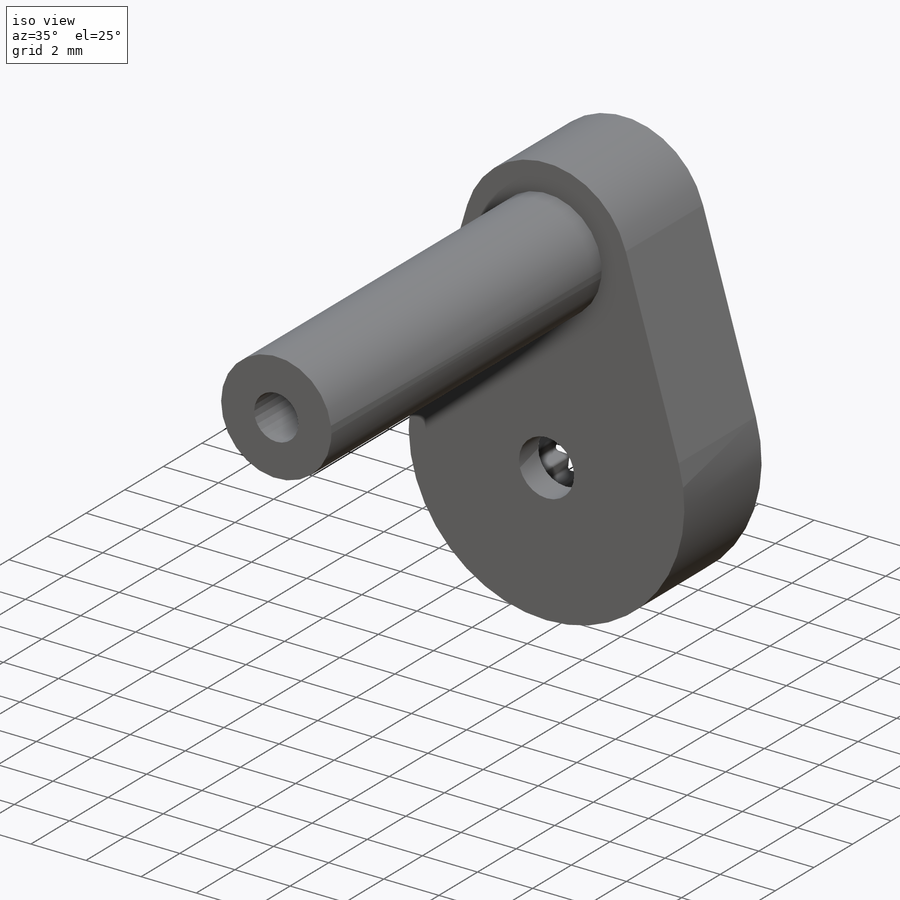
[diagram: iso view]
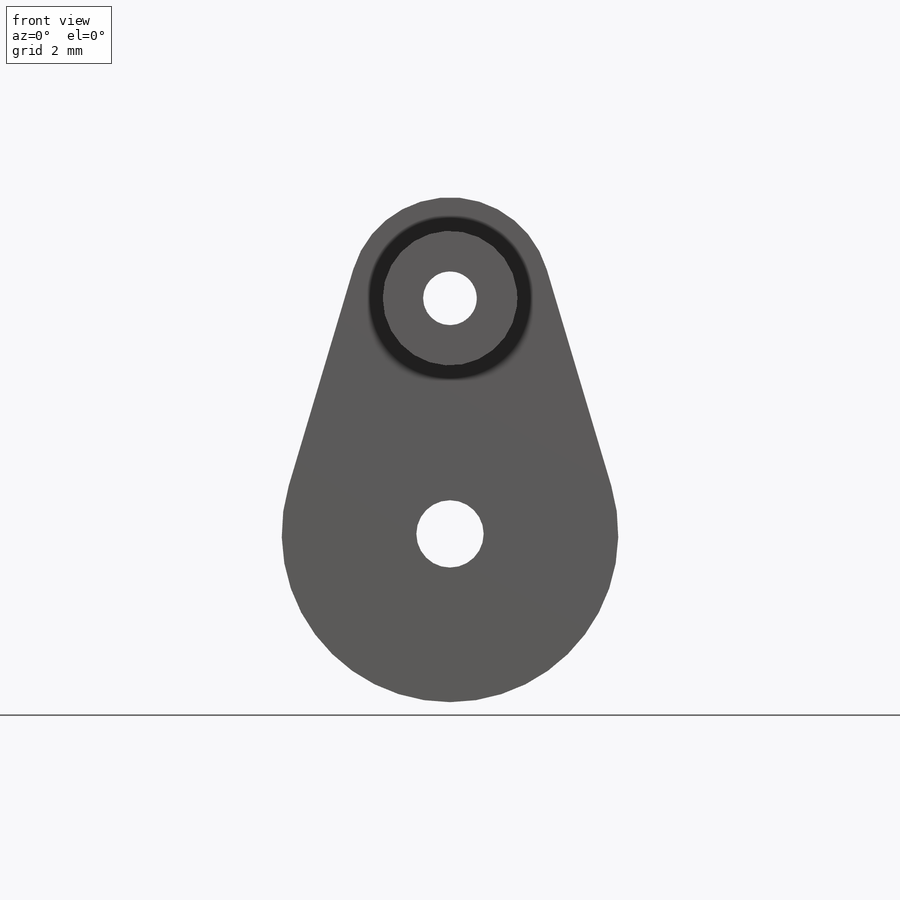
[diagram: front view]
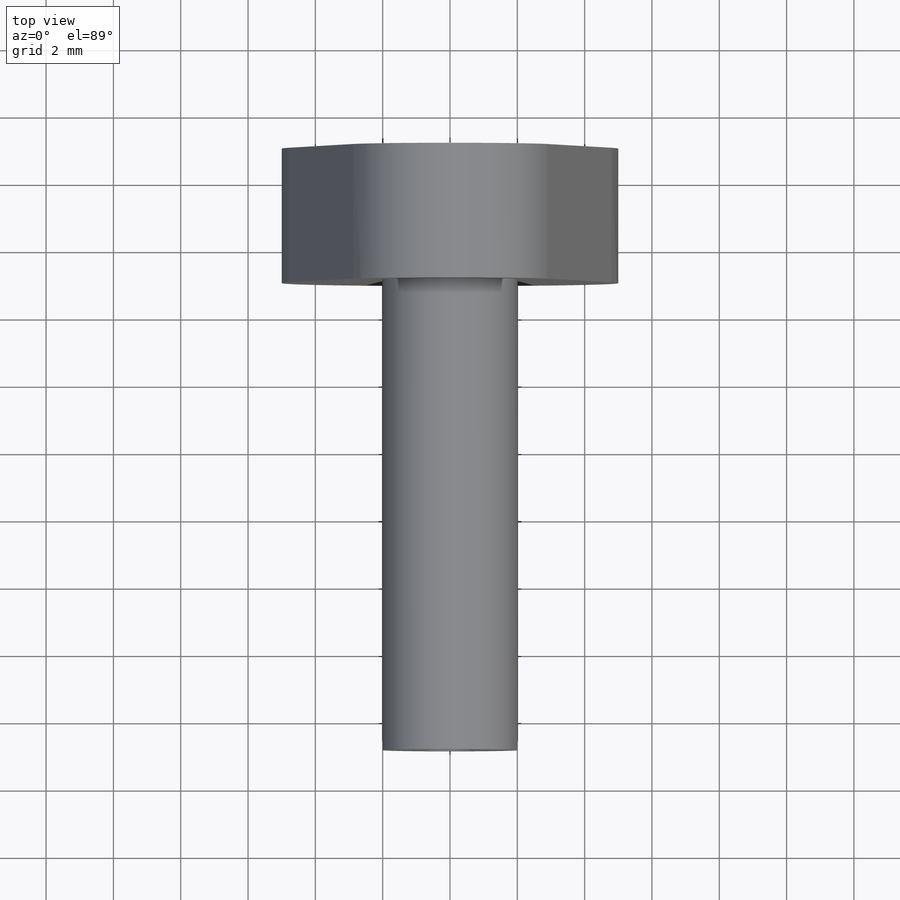
[diagram: top view]
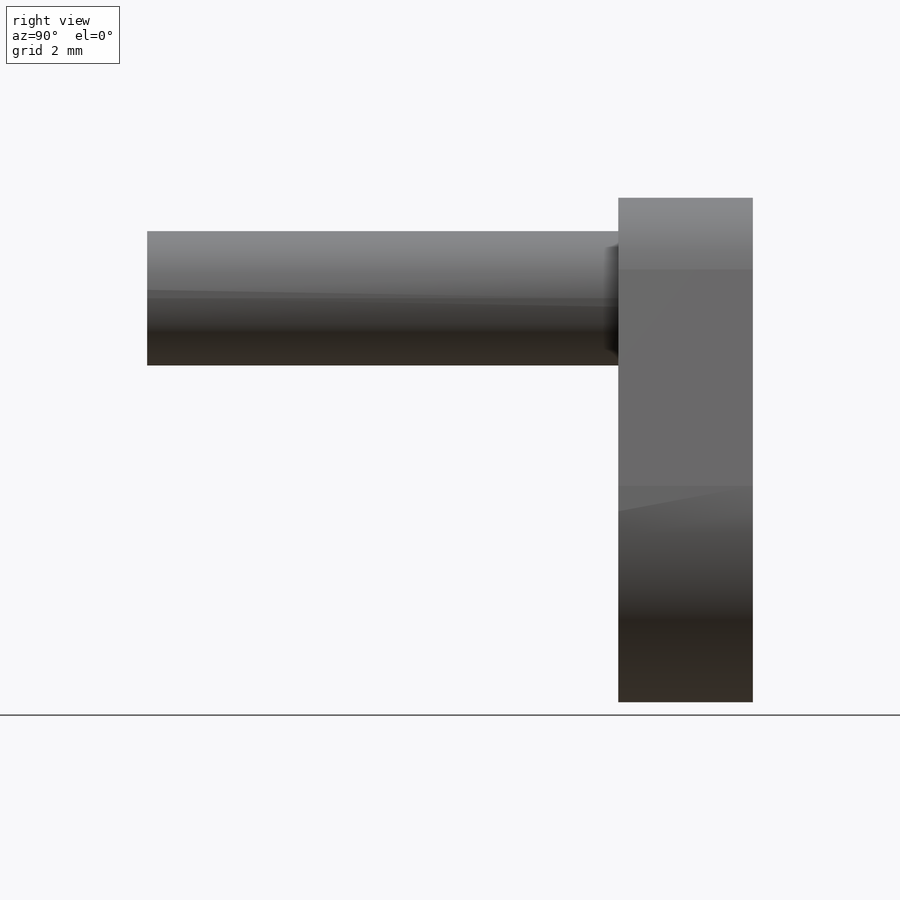
[diagram: right view]
SOLIDWORKS PART (.sldprt)
format: sldprt  version: not decoded by parser v0  size: 299,008 bytes
history: native  units: mm
features: sketch x6, extrude x4, plane x3, material x1, hole x1, pattern_circular x1 (+9 scaffold rows collapsed)
feature tree (25):
  scaffold x9  (default folders/planes/origin — collapsed)
  material  "PVC hart"
  plane  "Ebene vorne"
  plane  "Ebene oben"
  plane  "Ebene rechts"
  sketch  "Skizze1"  dims[c1.D1=5.8mm c1.D2=5.0mm c1.D4=4.0mm c1.D5=2.0mm c1.D6=~2.872077mm c1.D3=7.0mm c2.D6=1.0mm]
  extrude  "Aufsatz-Linear austragen1"  Depth=3mm
  extrude  "Aufsatz-Linear austragen2"  [1 undecoded]
  sketch  "Skizze1<3>"  dims[D1=1.0mm]
  extrude  "Aufsatz-Linear austragen3"  [1 undecoded]
  sketch  "Skizze1<4>"  dims[D1=15.0mm]
  hole  "Formsenkung für M3 Senkschraube mit Innensechskant1"  Diameter=1.6mm Depth=18mm
  sketch  "Skizze3"
  sketch  "Skizze2"  dims[hole-wizard template sketch: 54 standard entries collapsed; hole parameters kept: c17.Bohrerdurchmesser=1.6mm c17.Bohrungstiefe=18.0mm c17.Senkdurchmesser (Oben)=3.9mm c17.D4=~3.666174mm c17.Senkwinkel (Oben)=90.0deg]
  sketch  "Skizze4"  dims[c1.D2=5.2mm c1.D3=0.1mm c1.D1=~2.84664mm c2.D1=14.4deg]
  extrude  "Aufsatz-Linear austragen4"  [1 undecoded]
  pattern_circular  "Kreismuster1"  Count=25 Angle=360deg
decode coverage: 8 of 12 modeling features carry decoded parameters
note: ~ marks probable driven/reference dimensions
note: 3 parameter values undecoded
summary: no parameter record found for 3 features
note: suppression state not decoded; provenance and decode notes live in map.json
